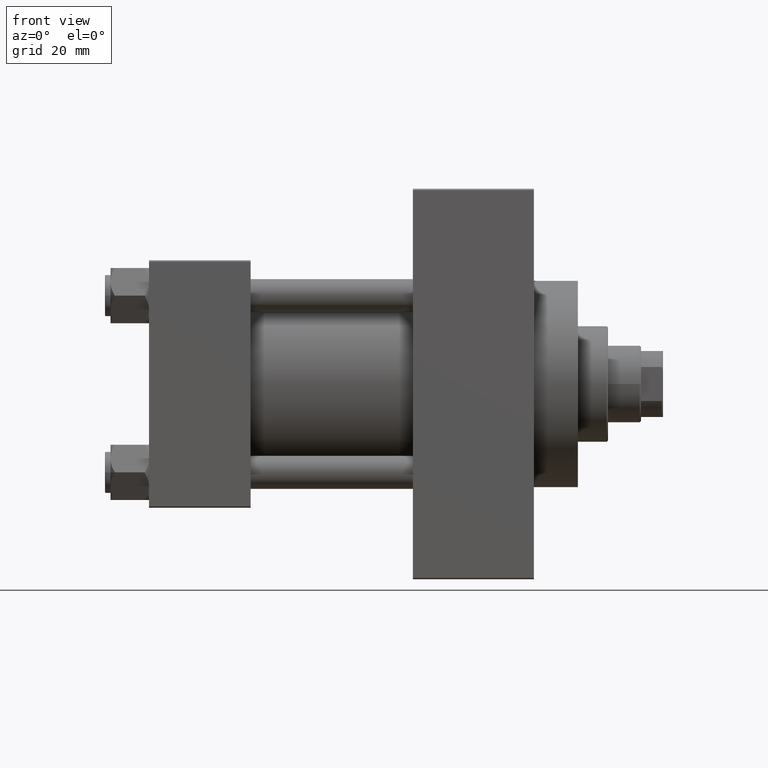
[diagram: clean part render]
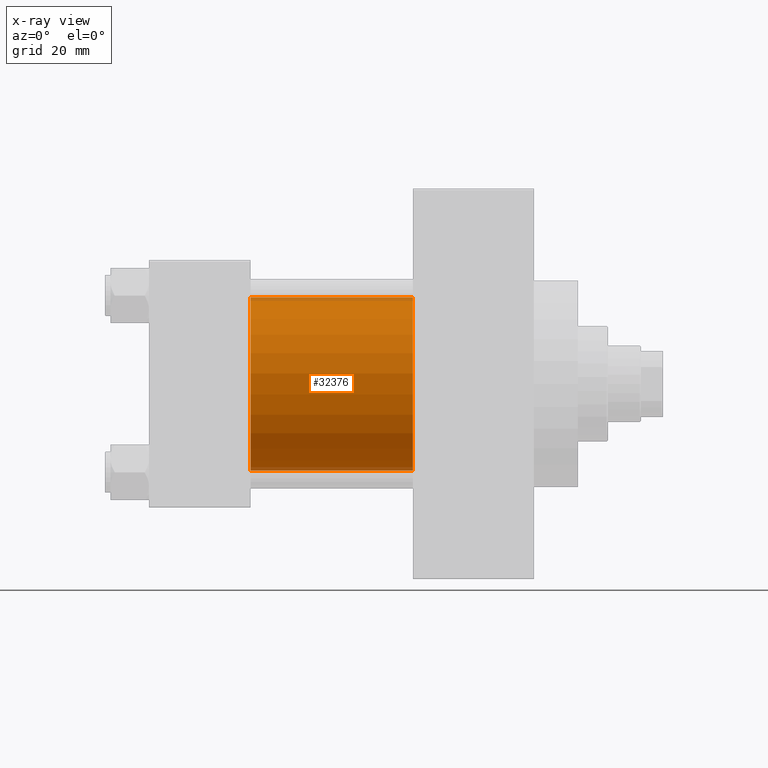
[diagram: x-ray — body ghosted, one internal face saturated and labeled with its STEP entity id]
A machine part, front view, then the same camera in x-ray: the body is ghosted and one INTERNAL B-rep face — a face not visible from any outside direction — is saturated and labeled: STEP entity #32376.
In plain terms, the highlighted cylindrical surface (partial cylindrical patch) has radius 31.5 mm, axis along (-1, -0, -0).
Its self-contained STEP definition (entity closure, byte-faithful):
#1347 = CARTESIAN_POINT ( 'NONE',  ( 96.00000000000000000, -2.602085213965210642E-15, 0.000000000000000000 ) ) ;
#3179 = FACE_OUTER_BOUND ( 'NONE', #29019, .T. ) ;
#5224 = CARTESIAN_POINT ( 'NONE',  ( 96.00000000000000000, 1.255552203348951850E-15, -31.50000000000000000 ) ) ;
#5252 = ORIENTED_EDGE ( 'NONE', *, *, #47387, .F. ) ;
#6790 = CARTESIAN_POINT ( 'NONE',  ( 37.00000000000000000, 1.255552203348951850E-15, -31.50000000000000000 ) ) ;
#7320 = LINE ( 'NONE', #21699, #25709 ) ;
#8181 = CARTESIAN_POINT ( 'NONE',  ( 96.00000000000000000, -2.602085213965210642E-15, 31.50000000000000000 ) ) ;
#10500 = EDGE_CURVE ( 'NONE', #41517, #12168, #37815, .T. ) ;
#12168 = VERTEX_POINT ( 'NONE', #6790 ) ;
#13122 = ORIENTED_EDGE ( 'NONE', *, *, #44792, .T. ) ;
#14750 = DIRECTION ( 'NONE',  ( -1.000000000000000000, -0.000000000000000000, -0.000000000000000000 ) ) ;
#15138 = DIRECTION ( 'NONE',  ( 0.000000000000000000, 0.000000000000000000, -1.000000000000000000 ) ) ;
#16604 = AXIS2_PLACEMENT_3D ( 'NONE', #26199, #34369, #48487 ) ;
#20090 = LINE ( 'NONE', #5224, #45354 ) ;
#20160 = CARTESIAN_POINT ( 'NONE',  ( 37.00000000000000000, -2.602085213965210642E-15, 31.50000000000000000 ) ) ;
#21699 = CARTESIAN_POINT ( 'NONE',  ( 96.00000000000000000, -2.602085213965210642E-15, 31.50000000000000000 ) ) ;
#21778 = EDGE_CURVE ( 'NONE', #41178, #31728, #23864, .T. ) ;
#23314 = CARTESIAN_POINT ( 'NONE',  ( 37.00000000000000000, -2.602085213965210642E-15, 0.000000000000000000 ) ) ;
#23864 = CIRCLE ( 'NONE', #28631, 31.50000000000000000 ) ;
#25709 = VECTOR ( 'NONE', #14750, 1000.000000000000000 ) ;
#26199 = CARTESIAN_POINT ( 'NONE',  ( 96.00000000000000000, -2.602085213965210642E-15, 0.000000000000000000 ) ) ;
#27988 = ORIENTED_EDGE ( 'NONE', *, *, #21778, .T. ) ;
#28631 = AXIS2_PLACEMENT_3D ( 'NONE', #1347, #31306, #41967 ) ;
#29019 = EDGE_LOOP ( 'NONE', ( #27988, #13122, #45176, #5252 ) ) ;
#30393 = CARTESIAN_POINT ( 'NONE',  ( 96.00000000000000000, 1.255552203348951850E-15, -31.50000000000000000 ) ) ;
#31306 = DIRECTION ( 'NONE',  ( 1.000000000000000000, 0.000000000000000000, 0.000000000000000000 ) ) ;
#31490 = AXIS2_PLACEMENT_3D ( 'NONE', #23314, #45567, #15138 ) ;
#31728 = VERTEX_POINT ( 'NONE', #30393 ) ;
#32376 = ADVANCED_FACE ( 'NONE', ( #3179 ), #44754, .F. ) ;
#34369 = DIRECTION ( 'NONE',  ( -1.000000000000000000, -0.000000000000000000, -0.000000000000000000 ) ) ;
#37815 = CIRCLE ( 'NONE', #31490, 31.50000000000000000 ) ;
#39138 = DIRECTION ( 'NONE',  ( -1.000000000000000000, -0.000000000000000000, -0.000000000000000000 ) ) ;
#41178 = VERTEX_POINT ( 'NONE', #8181 ) ;
#41517 = VERTEX_POINT ( 'NONE', #20160 ) ;
#41967 = DIRECTION ( 'NONE',  ( 0.000000000000000000, 0.000000000000000000, -1.000000000000000000 ) ) ;
#44754 = CYLINDRICAL_SURFACE ( 'NONE', #16604, 31.50000000000000000 ) ;
#44792 = EDGE_CURVE ( 'NONE', #31728, #12168, #20090, .T. ) ;
#45176 = ORIENTED_EDGE ( 'NONE', *, *, #10500, .F. ) ;
#45354 = VECTOR ( 'NONE', #39138, 1000.000000000000000 ) ;
#45567 = DIRECTION ( 'NONE',  ( 1.000000000000000000, 0.000000000000000000, 0.000000000000000000 ) ) ;
#47387 = EDGE_CURVE ( 'NONE', #41178, #41517, #7320, .T. ) ;
#48487 = DIRECTION ( 'NONE',  ( 0.000000000000000000, 0.000000000000000000, 1.000000000000000000 ) ) ;